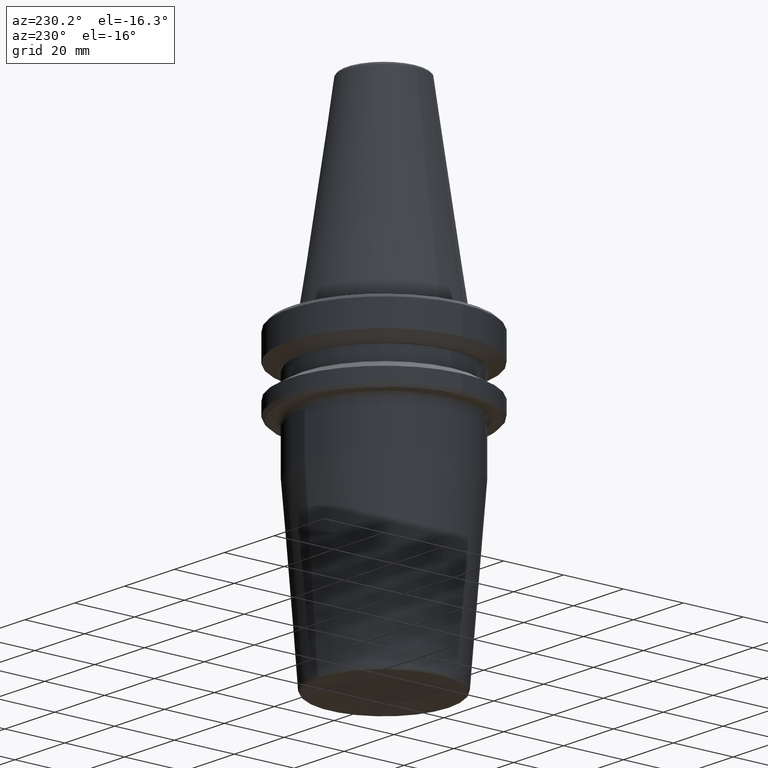
[diagram: clean part render]
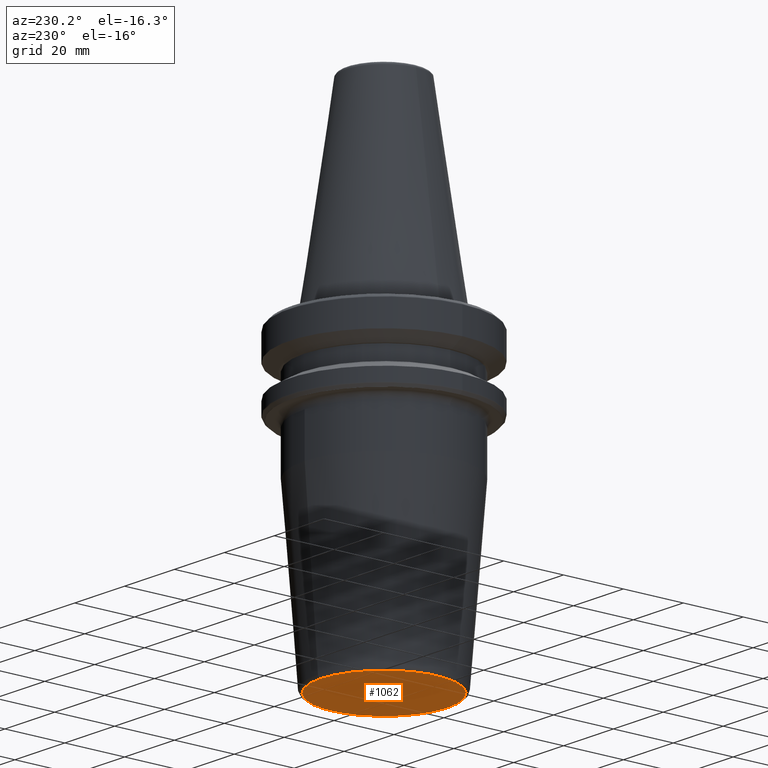
[diagram: same view with one face highlighted and labeled with its STEP entity id]
A machine part, auxiliary view. The second image highlights one B-rep face of the part: STEP entity #1062.
In plain terms, the highlighted planar face has unit normal (0, -0, 1).
Its self-contained STEP definition (entity closure, byte-faithful):
#188 = EDGE_CURVE ( 'NONE', #888, #554, #448, .T. ) ;
#304 = EDGE_LOOP ( 'NONE', ( #924, #802 ) ) ;
#361 = DIRECTION ( 'NONE',  ( 0.0000000000000000000, -3.690716380992023300E-017, 1.000000000000000000 ) ) ;
#436 = EDGE_CURVE ( 'NONE', #554, #888, #522, .T. ) ;
#448 = CIRCLE ( 'NONE', #1125, 21.07560950834178500 ) ;
#515 = CARTESIAN_POINT ( 'NONE',  ( 0.0000000000000000000, 21.07560950834178800, -100.0000000000000000 ) ) ;
#522 = CIRCLE ( 'NONE', #1238, 21.07560950834178500 ) ;
#554 = VERTEX_POINT ( 'NONE', #515 ) ;
#715 = CARTESIAN_POINT ( 'NONE',  ( 2.642061353535568000E-015, -21.07560950834178100, -100.0000000000000000 ) ) ;
#744 = PLANE ( 'NONE',  #1096 ) ;
#802 = ORIENTED_EDGE ( 'NONE', *, *, #188, .T. ) ;
#827 = DIRECTION ( 'NONE',  ( 0.0000000000000000000, 1.000000000000000000, 0.0000000000000000000 ) ) ;
#888 = VERTEX_POINT ( 'NONE', #715 ) ;
#924 = ORIENTED_EDGE ( 'NONE', *, *, #436, .T. ) ;
#935 = CARTESIAN_POINT ( 'NONE',  ( 0.0000000000000000000, 2.694222958124177200E-015, -100.0000000000000000 ) ) ;
#947 = DIRECTION ( 'NONE',  ( -0.0000000000000000000, 3.690716380992023300E-017, -1.000000000000000000 ) ) ;
#1046 = CARTESIAN_POINT ( 'NONE',  ( 0.0000000000000000000, 2.694222958124177200E-015, -100.0000000000000000 ) ) ;
#1056 = DIRECTION ( 'NONE',  ( 0.0000000000000000000, -1.000000000000000000, -3.690716380992023300E-017 ) ) ;
#1057 = DIRECTION ( 'NONE',  ( 0.0000000000000000000, 1.000000000000000000, 0.0000000000000000000 ) ) ;
#1062 = ADVANCED_FACE ( 'NONE', ( #1183 ), #744, .F. ) ;
#1096 = AXIS2_PLACEMENT_3D ( 'NONE', #1261, #361, #1056 ) ;
#1125 = AXIS2_PLACEMENT_3D ( 'NONE', #935, #1247, #827 ) ;
#1183 = FACE_OUTER_BOUND ( 'NONE', #304, .T. ) ;
#1238 = AXIS2_PLACEMENT_3D ( 'NONE', #1046, #947, #1057 ) ;
#1247 = DIRECTION ( 'NONE',  ( -0.0000000000000000000, 3.690716380992023300E-017, -1.000000000000000000 ) ) ;
#1261 = CARTESIAN_POINT ( 'NONE',  ( 0.0000000000000000000, 1.435395209539996700E-032, -100.0000000000000000 ) ) ;